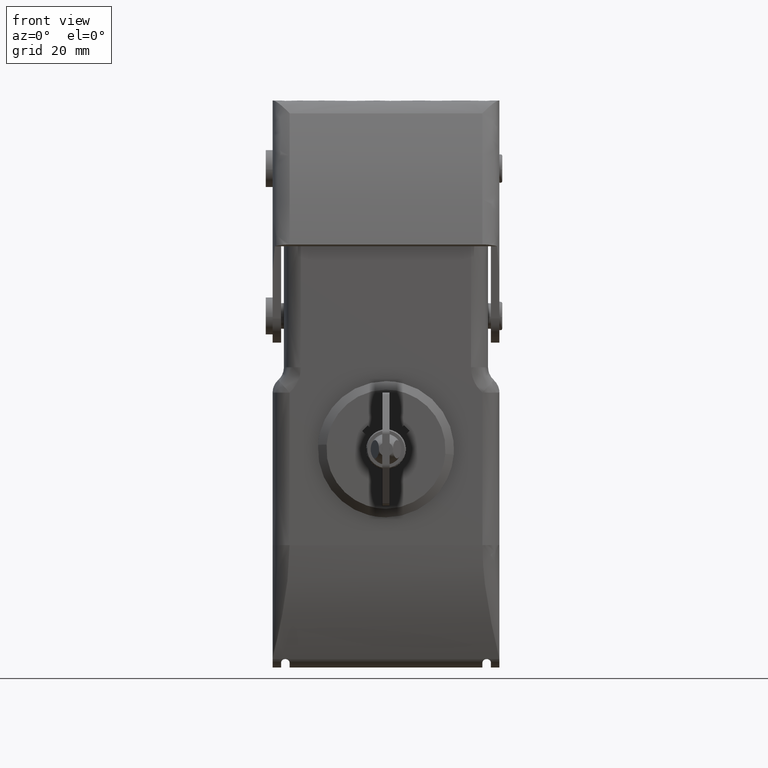
[diagram: clean part render]
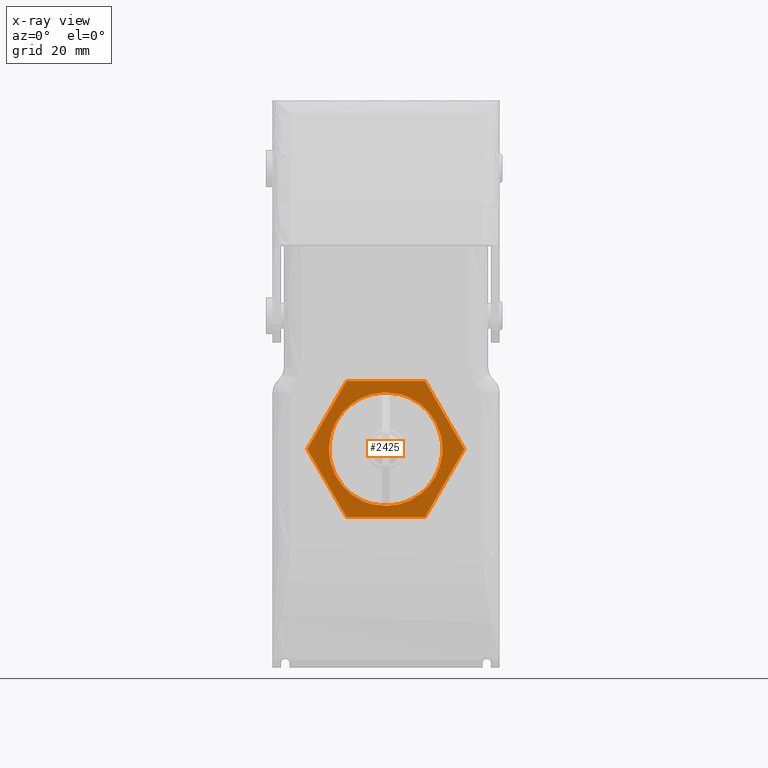
[diagram: x-ray — body ghosted, one internal face saturated and labeled with its STEP entity id]
A machine part, front view, then the same camera in x-ray: the body is ghosted and one INTERNAL B-rep face — a face not visible from any outside direction — is saturated and labeled: STEP entity #2425.
In plain terms, the highlighted face is a freeform B-spline surface patch.
Its self-contained STEP definition (entity closure, byte-faithful):
#2310=CARTESIAN_POINT('',(-15.278099599937001,-17.499999999983601,-36.198799953908519));
#2311=CARTESIAN_POINT('',(15.203223695348690,-17.499999999983601,-36.198799953908519));
#2312=CARTESIAN_POINT('',(-15.278099599937001,-17.499999999983601,-9.801199403210145));
#2313=CARTESIAN_POINT('',(15.203223695348690,-17.499999999983601,-9.801199403210145));
#2314=B_SPLINE_SURFACE_WITH_KNOTS('',1,1,((#2310,#2312),(#2311,#2313)),.UNSPECIFIED.,.F.,.F.,.U.,(2,2),(2,2),(0.0,30.481323295285680),(0.0,26.397600550698382),.UNSPECIFIED.);
#2315=CARTESIAN_POINT('',(6.890764782438960,-17.499999999983551,-11.000000000425221));
#2316=VERTEX_POINT('',#2315);
#2317=CARTESIAN_POINT('',(-6.965641678112149,-17.499999999983551,-11.000000000423720));
#2318=VERTEX_POINT('',#2317);
#2319=CARTESIAN_POINT('',(6.890764782438960,-17.499999999983551,-11.000000000425221));
#2320=CARTESIAN_POINT('',(-6.965641678112149,-17.499999999983551,-11.000000000423720));
#2321=QUASI_UNIFORM_CURVE('',1,(#2319,#2320),.UNSPECIFIED.,.F.,.U.);
#2322=EDGE_CURVE('',#2316,#2318,#2321,.T.);
#2323=ORIENTED_EDGE('',*,*,#2322,.T.);
#2324=CARTESIAN_POINT('',(-13.893844908388820,-17.499999999983551,-23.000000000423050));
#2325=VERTEX_POINT('',#2324);
#2326=CARTESIAN_POINT('',(-6.965641678112149,-17.499999999983551,-11.000000000423720));
#2327=CARTESIAN_POINT('',(-13.893844908388820,-17.499999999983551,-23.000000000423050));
#2328=QUASI_UNIFORM_CURVE('',1,(#2326,#2327),.UNSPECIFIED.,.F.,.U.);
#2329=EDGE_CURVE('',#2318,#2325,#2328,.T.);
#2330=ORIENTED_EDGE('',*,*,#2329,.T.);
#2331=CARTESIAN_POINT('',(-6.965641678114570,-17.499999999983551,-35.000000000423647));
#2332=VERTEX_POINT('',#2331);
#2333=CARTESIAN_POINT('',(-13.893844908388820,-17.499999999983551,-23.000000000423050));
#2334=CARTESIAN_POINT('',(-6.965641678114570,-17.499999999983551,-35.000000000423647));
#2335=QUASI_UNIFORM_CURVE('',1,(#2333,#2334),.UNSPECIFIED.,.F.,.U.);
#2336=EDGE_CURVE('',#2325,#2332,#2335,.T.);
#2337=ORIENTED_EDGE('',*,*,#2336,.T.);
#2338=CARTESIAN_POINT('',(6.890764782436210,-17.499999999983551,-35.000000000425104));
#2339=VERTEX_POINT('',#2338);
#2340=CARTESIAN_POINT('',(-6.965641678114570,-17.499999999983551,-35.000000000423647));
#2341=CARTESIAN_POINT('',(6.890764782436210,-17.499999999983551,-35.000000000425104));
#2342=QUASI_UNIFORM_CURVE('',1,(#2340,#2341),.UNSPECIFIED.,.F.,.U.);
#2343=EDGE_CURVE('',#2332,#2339,#2342,.T.);
#2344=ORIENTED_EDGE('',*,*,#2343,.T.);
#2345=CARTESIAN_POINT('',(13.818968012713100,-17.499999999983551,-23.000000000425850));
#2346=VERTEX_POINT('',#2345);
#2347=CARTESIAN_POINT('',(6.890764782436210,-17.499999999983551,-35.000000000425104));
#2348=CARTESIAN_POINT('',(13.818968012713100,-17.499999999983551,-23.000000000425850));
#2349=QUASI_UNIFORM_CURVE('',1,(#2347,#2348),.UNSPECIFIED.,.F.,.U.);
#2350=EDGE_CURVE('',#2339,#2346,#2349,.T.);
#2351=ORIENTED_EDGE('',*,*,#2350,.T.);
#2352=CARTESIAN_POINT('',(13.818968012713100,-17.499999999983551,-23.000000000425850));
#2353=CARTESIAN_POINT('',(6.890764782438960,-17.499999999983551,-11.000000000425221));
#2354=QUASI_UNIFORM_CURVE('',1,(#2352,#2353),.UNSPECIFIED.,.F.,.U.);
#2355=EDGE_CURVE('',#2346,#2316,#2354,.T.);
#2356=ORIENTED_EDGE('',*,*,#2355,.T.);
#2357=EDGE_LOOP('',(#2323,#2330,#2337,#2344,#2351,#2356));
#2358=FACE_OUTER_BOUND('',#2357,.T.);
#2359=CARTESIAN_POINT('',(2.248053085811190,-17.499999999983551,-13.264676253901460));
#2360=VERTEX_POINT('',#2359);
#2361=CARTESIAN_POINT('',(-9.772762194369669,-17.499999999983551,-25.285491534038101));
#2362=VERTEX_POINT('',#2361);
#2363=CARTESIAN_POINT('',(2.248053085811189,-17.499999999983551,-13.264676253901460));
#2364=CARTESIAN_POINT('',(-3.171857194482172,-17.499999999983554,-11.992283123352179));
#2365=CARTESIAN_POINT('',(-7.108506259690596,-17.499999999983551,-15.928932188546121));
#2366=CARTESIAN_POINT('',(-11.045155324899014,-17.499999999983554,-19.865581253740054));
#2367=CARTESIAN_POINT('',(-9.772762194369674,-17.499999999983551,-25.285491534038091));
#2375=(BOUNDED_CURVE()B_SPLINE_CURVE(2,(#2363,#2364,#2365,#2366,#2367),.UNSPECIFIED.,.F.,.U.)B_SPLINE_CURVE_WITH_KNOTS((3,2,3),(0.0,0.500000000000000,1.0),.UNSPECIFIED.)CURVE()GEOMETRIC_REPRESENTATION_ITEM()RATIONAL_B_SPLINE_CURVE((1.0,0.873722692747553,1.0,0.873722692747553,1.0))REPRESENTATION_ITEM(''));
#2376=EDGE_CURVE('',#2360,#2362,#2375,.T.);
#2377=ORIENTED_EDGE('',*,*,#2376,.F.);
#2378=CARTESIAN_POINT('',(9.697885298685470,-17.499999999983551,-20.714508466777250));
#2379=VERTEX_POINT('',#2378);
#2380=CARTESIAN_POINT('',(9.697885298685472,-17.499999999983551,-20.714508466777250));
#2381=CARTESIAN_POINT('',(8.281464860239469,-17.499999999983554,-14.681096692348682));
#2382=CARTESIAN_POINT('',(2.248053085811189,-17.499999999983551,-13.264676253901460));
#2390=(BOUNDED_CURVE()B_SPLINE_CURVE(2,(#2380,#2381,#2382),.UNSPECIFIED.,.F.,.U.)CURVE()GEOMETRIC_REPRESENTATION_ITEM()QUASI_UNIFORM_CURVE()RATIONAL_B_SPLINE_CURVE((1.0,0.850000000000028,1.0))REPRESENTATION_ITEM(''));
#2391=EDGE_CURVE('',#2379,#2360,#2390,.T.);
#2392=ORIENTED_EDGE('',*,*,#2391,.F.);
#2393=CARTESIAN_POINT('',(-2.322929981449630,-17.499999999983551,-32.735323746956603));
#2394=VERTEX_POINT('',#2393);
#2395=CARTESIAN_POINT('',(-2.322929981449637,-17.499999999983551,-32.735323746956617));
#2396=CARTESIAN_POINT('',(3.096980298847370,-17.499999999983547,-34.007716877484548));
#2397=CARTESIAN_POINT('',(7.033629364040364,-17.499999999983551,-30.071067812277061));
#2398=CARTESIAN_POINT('',(10.970278429233353,-17.499999999983547,-26.134418747069571));
#2399=CARTESIAN_POINT('',(9.697885298685474,-17.499999999983551,-20.714508466777250));
#2407=(BOUNDED_CURVE()B_SPLINE_CURVE(2,(#2395,#2396,#2397,#2398,#2399),.UNSPECIFIED.,.F.,.U.)B_SPLINE_CURVE_WITH_KNOTS((3,2,3),(0.0,0.500000000000000,1.0),.UNSPECIFIED.)CURVE()GEOMETRIC_REPRESENTATION_ITEM()RATIONAL_B_SPLINE_CURVE((1.0,0.873722692747603,1.0,0.873722692747603,1.0))REPRESENTATION_ITEM(''));
#2408=EDGE_CURVE('',#2394,#2379,#2407,.T.);
#2409=ORIENTED_EDGE('',*,*,#2408,.F.);
#2410=CARTESIAN_POINT('',(-9.772762194369674,-17.499999999983551,-25.285491534038091));
#2411=CARTESIAN_POINT('',(-8.356341755933011,-17.499999999983554,-31.318903308521186));
#2412=CARTESIAN_POINT('',(-2.322929981449637,-17.499999999983551,-32.735323746956617));
#2420=(BOUNDED_CURVE()B_SPLINE_CURVE(2,(#2410,#2411,#2412),.UNSPECIFIED.,.F.,.U.)CURVE()GEOMETRIC_REPRESENTATION_ITEM()QUASI_UNIFORM_CURVE()RATIONAL_B_SPLINE_CURVE((1.0,0.849999999998089,1.0))REPRESENTATION_ITEM(''));
#2421=EDGE_CURVE('',#2362,#2394,#2420,.T.);
#2422=ORIENTED_EDGE('',*,*,#2421,.F.);
#2423=EDGE_LOOP('',(#2377,#2392,#2409,#2422));
#2424=FACE_BOUND('',#2423,.T.);
#2425=ADVANCED_FACE('',(#2358,#2424),#2314,.T.);